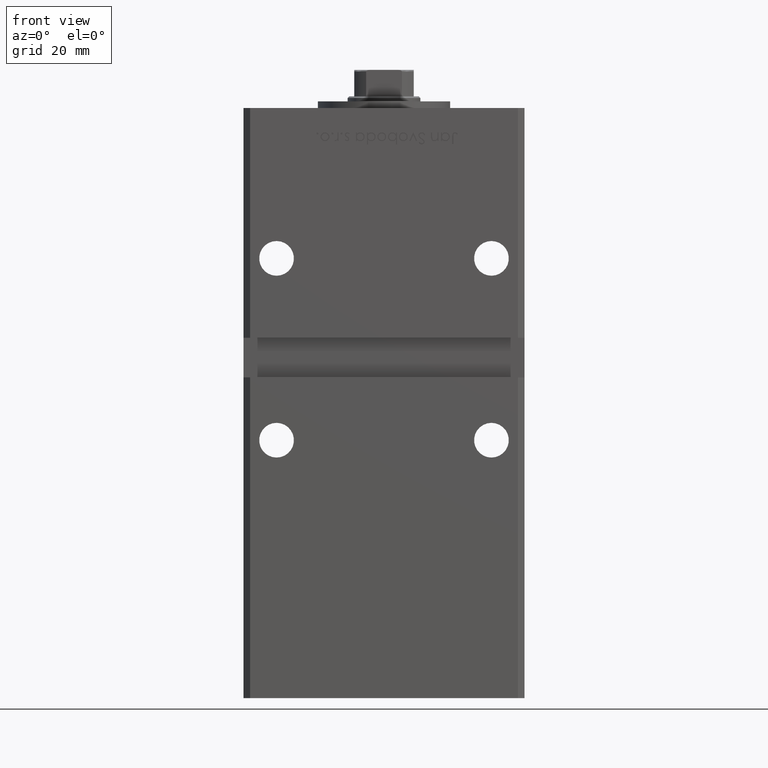
[diagram: clean part render]
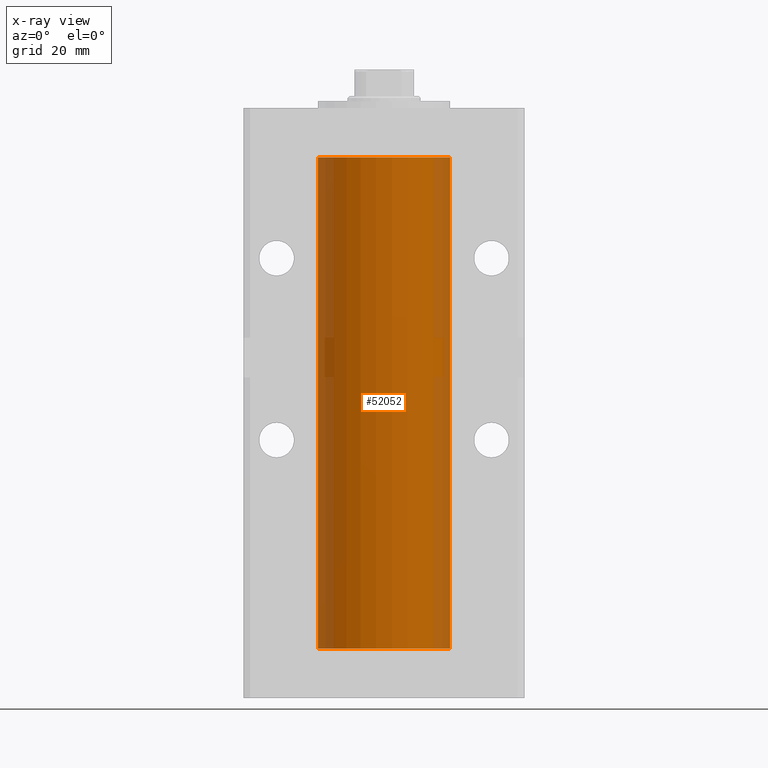
[diagram: x-ray — body ghosted, one internal face saturated and labeled with its STEP entity id]
A machine part, front view, then the same camera in x-ray: the body is ghosted and one INTERNAL B-rep face — a face not visible from any outside direction — is saturated and labeled: STEP entity #52052.
In plain terms, the highlighted cylindrical surface (partial cylindrical patch) has radius 20 mm, axis along (-0, -0, -1).
Its self-contained STEP definition (entity closure, byte-faithful):
#90 = CARTESIAN_POINT ( 'NONE',  ( 0.000000000000000000, 0.000000000000000000, 148.5000000000000000 ) ) ;
#1444 = DIRECTION ( 'NONE',  ( -0.000000000000000000, 0.000000000000000000, 1.000000000000000000 ) ) ;
#2701 = EDGE_CURVE ( 'NONE', #19563, #25880, #39885, .T. ) ;
#4937 = DIRECTION ( 'NONE',  ( 1.000000000000000000, 0.000000000000000000, 0.000000000000000000 ) ) ;
#5467 = CARTESIAN_POINT ( 'NONE',  ( 0.000000000000000000, 0.000000000000000000, 148.5000000000000000 ) ) ;
#7565 = VECTOR ( 'NONE', #45467, 1000.000000000000000 ) ;
#9865 = EDGE_CURVE ( 'NONE', #19730, #19563, #28838, .T. ) ;
#14549 = CARTESIAN_POINT ( 'NONE',  ( -20.00000000000000000, 0.000000000000000000, 148.5000000000000000 ) ) ;
#16773 = DIRECTION ( 'NONE',  ( -1.000000000000000000, 0.000000000000000000, 0.000000000000000000 ) ) ;
#18236 = VECTOR ( 'NONE', #43517, 1000.000000000000000 ) ;
#18955 = ORIENTED_EDGE ( 'NONE', *, *, #43935, .T. ) ;
#19563 = VERTEX_POINT ( 'NONE', #38206 ) ;
#19730 = VERTEX_POINT ( 'NONE', #14549 ) ;
#20286 = CYLINDRICAL_SURFACE ( 'NONE', #44174, 20.00000000000000000 ) ;
#25880 = VERTEX_POINT ( 'NONE', #43734 ) ;
#26589 = DIRECTION ( 'NONE',  ( 1.000000000000000000, 0.000000000000000000, 0.000000000000000000 ) ) ;
#26877 = AXIS2_PLACEMENT_3D ( 'NONE', #5467, #1444, #4937 ) ;
#28838 = LINE ( 'NONE', #49502, #7565 ) ;
#30889 = LINE ( 'NONE', #47013, #18236 ) ;
#36303 = CIRCLE ( 'NONE', #26877, 20.00000000000000000 ) ;
#36773 = ORIENTED_EDGE ( 'NONE', *, *, #9865, .F. ) ;
#36922 = DIRECTION ( 'NONE',  ( -0.000000000000000000, -0.000000000000000000, -1.000000000000000000 ) ) ;
#37983 = ORIENTED_EDGE ( 'NONE', *, *, #2701, .F. ) ;
#38206 = CARTESIAN_POINT ( 'NONE',  ( -20.00000000000000000, 0.000000000000000000, 0.000000000000000000 ) ) ;
#39885 = CIRCLE ( 'NONE', #43317, 20.00000000000000000 ) ;
#42441 = DIRECTION ( 'NONE',  ( -0.000000000000000000, 0.000000000000000000, 1.000000000000000000 ) ) ;
#42971 = CARTESIAN_POINT ( 'NONE',  ( 0.000000000000000000, 0.000000000000000000, 0.000000000000000000 ) ) ;
#43317 = AXIS2_PLACEMENT_3D ( 'NONE', #42971, #42441, #26589 ) ;
#43517 = DIRECTION ( 'NONE',  ( -0.000000000000000000, -0.000000000000000000, -1.000000000000000000 ) ) ;
#43734 = CARTESIAN_POINT ( 'NONE',  ( 20.00000000000000000, 2.449293598294706513E-15, 0.000000000000000000 ) ) ;
#43935 = EDGE_CURVE ( 'NONE', #19730, #52388, #36303, .T. ) ;
#44174 = AXIS2_PLACEMENT_3D ( 'NONE', #90, #36922, #16773 ) ;
#45263 = FACE_OUTER_BOUND ( 'NONE', #49724, .T. ) ;
#45467 = DIRECTION ( 'NONE',  ( -0.000000000000000000, -0.000000000000000000, -1.000000000000000000 ) ) ;
#45562 = EDGE_CURVE ( 'NONE', #52388, #25880, #30889, .T. ) ;
#46782 = CARTESIAN_POINT ( 'NONE',  ( 20.00000000000000000, 2.449293598294706513E-15, 148.5000000000000000 ) ) ;
#47013 = CARTESIAN_POINT ( 'NONE',  ( 20.00000000000000000, 2.449293598294706513E-15, 148.5000000000000000 ) ) ;
#49025 = ORIENTED_EDGE ( 'NONE', *, *, #45562, .T. ) ;
#49502 = CARTESIAN_POINT ( 'NONE',  ( -20.00000000000000000, 0.000000000000000000, 148.5000000000000000 ) ) ;
#49724 = EDGE_LOOP ( 'NONE', ( #18955, #49025, #37983, #36773 ) ) ;
#52052 = ADVANCED_FACE ( 'NONE', ( #45263 ), #20286, .F. ) ;
#52388 = VERTEX_POINT ( 'NONE', #46782 ) ;